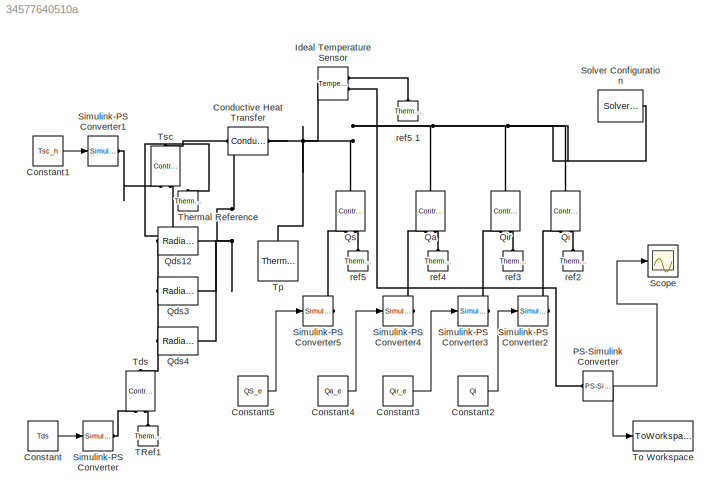
MODEL slx_34577640510a
KIND model
CONFIG AbsTol = auto
CONFIG EnableMultiTasking = on
CONFIG FixedStep = auto
CONFIG MaxStep = auto
CONFIG MinStep = auto
CONFIG RelTol = 1e-3
CONFIG SampleTimeConstraint = Unconstrained
CONFIG Solver = VariableStepAuto
CONFIG SolverName = VariableStepAuto
CONFIG StartTime = 0.0
CONFIG StopTime = time
BLOCK [Reference] Conductive Heat Transfer  REF=fl_lib/Thermal/Thermal Elements/Conductive Heat
Transfer
  Ports = [0, 0, 0, 0, 0, 1, 1]
  SourceBlock = fl_lib/Thermal/Thermal Elements/Conductive Heat\nTransfer
  SourceProductBaseCode = SS
  SourceProductName = Simscape
  SourceType = Conductive Heat\nTransfer
BLOCK [Constant] Constant
  Value = Tds
BLOCK [Constant] Constant1
  Value = Tsc_h
BLOCK [Constant] Constant2
  Value = Qi
BLOCK [Constant] Constant3
  Value = Qir_e
BLOCK [Constant] Constant4
  Value = Qa_e
BLOCK [Constant] Constant5
  Value = QS_e
BLOCK [Reference] Ideal Temperature Sensor  REF=fl_lib/Thermal/Thermal Sensors/Temperature Sensor
  Ports = [0, 0, 0, 0, 0, 1, 2]
  SourceBlock = fl_lib/Thermal/Thermal Sensors/Temperature Sensor
  SourceProductBaseCode = SS
  SourceProductName = Simscape
  SourceType = Temperature Sensor
BLOCK [Reference] PS-Simulink Converter  REF=nesl_utility/PS-Simulink
Converter
  Ports = [0, 1, 0, 0, 0, 1]
  SourceBlock = nesl_utility/PS-Simulink\nConverter
  SourceProductBaseCode = SS
  SourceProductName = Simscape
  SourceType = PS-Simulink\nConverter
BLOCK [Reference] Qa  REF=fl_lib/Thermal/Thermal Sources/Controlled Heat Flow
Rate Source
  Ports = [0, 0, 0, 0, 0, 1, 2]
  SourceBlock = fl_lib/Thermal/Thermal Sources/Controlled Heat Flow\nRate Source
  SourceProductBaseCode = SS
  SourceProductName = Simscape
  SourceType = Controlled Heat Flow\nRate Source
BLOCK [Reference] Qds12  REF=fl_lib/Thermal/Thermal Elements/Radiative Heat
Transfer
  Ports = [0, 0, 0, 0, 0, 1, 1]
  SourceBlock = fl_lib/Thermal/Thermal Elements/Radiative Heat\nTransfer
  SourceProductBaseCode = SS
  SourceProductName = Simscape
  SourceType = Radiative Heat\nTransfer
BLOCK [Reference] Qds3  REF=fl_lib/Thermal/Thermal Elements/Radiative Heat
Transfer
  Ports = [0, 0, 0, 0, 0, 1, 1]
  SourceBlock = fl_lib/Thermal/Thermal Elements/Radiative Heat\nTransfer
  SourceProductBaseCode = SS
  SourceProductName = Simscape
  SourceType = Radiative Heat\nTransfer
BLOCK [Reference] Qds4  REF=fl_lib/Thermal/Thermal Elements/Radiative Heat
Transfer
  Ports = [0, 0, 0, 0, 0, 1, 1]
  SourceBlock = fl_lib/Thermal/Thermal Elements/Radiative Heat\nTransfer
  SourceProductBaseCode = SS
  SourceProductName = Simscape
  SourceType = Radiative Heat\nTransfer
BLOCK [Reference] Qi  REF=fl_lib/Thermal/Thermal Sources/Controlled Heat Flow
Rate Source
  Ports = [0, 0, 0, 0, 0, 1, 2]
  SourceBlock = fl_lib/Thermal/Thermal Sources/Controlled Heat Flow\nRate Source
  SourceProductBaseCode = SS
  SourceProductName = Simscape
  SourceType = Controlled Heat Flow\nRate Source
BLOCK [Reference] Qir  REF=fl_lib/Thermal/Thermal Sources/Controlled Heat Flow
Rate Source
  Ports = [0, 0, 0, 0, 0, 1, 2]
  SourceBlock = fl_lib/Thermal/Thermal Sources/Controlled Heat Flow\nRate Source
  SourceProductBaseCode = SS
  SourceProductName = Simscape
  SourceType = Controlled Heat Flow\nRate Source
BLOCK [Reference] Qs  REF=fl_lib/Thermal/Thermal Sources/Controlled Heat Flow
Rate Source
  Ports = [0, 0, 0, 0, 0, 1, 2]
  SourceBlock = fl_lib/Thermal/Thermal Sources/Controlled Heat Flow\nRate Source
  SourceProductBaseCode = SS
  SourceProductName = Simscape
  SourceType = Controlled Heat Flow\nRate Source
BLOCK [Scope] Scope
  Floating = off
  NumInputPorts = 1
  Ports = [1]
  ScopeSpecificationString = Simulink.scopes.TimeScopeBlockCfg('CurrentConfiguration', extmgr.ConfigurationSet(extmgr.Configuration('Core','General UI',true),extmgr.Configuration('Core','Source UI',true),extmgr.Configuration('Sources','WiredSimulink',true),extmgr.Configuration('Visuals','Time Domain',true,'SerializedDisplays',{struct('MinYLimReal','259.68347','MaxYLimReal','392.84879','YLabelReal','','MinYLimMag','259.68347',...<+1425ch>
BLOCK [Reference] Simulink-PS Converter  REF=nesl_utility/Simulink-PS
Converter
  Ports = [1, 0, 0, 0, 0, 0, 1]
  SourceBlock = nesl_utility/Simulink-PS\nConverter
  SourceProductBaseCode = SS
  SourceProductName = Simscape
  SourceType = Simulink-PS\nConverter
BLOCK [Reference] Simulink-PS Converter1  REF=nesl_utility/Simulink-PS
Converter
  Ports = [1, 0, 0, 0, 0, 0, 1]
  SourceBlock = nesl_utility/Simulink-PS\nConverter
  SourceProductBaseCode = SS
  SourceProductName = Simscape
  SourceType = Simulink-PS\nConverter
BLOCK [Reference] Simulink-PS Converter2  REF=nesl_utility/Simulink-PS
Converter
  Ports = [1, 0, 0, 0, 0, 0, 1]
  SourceBlock = nesl_utility/Simulink-PS\nConverter
  SourceProductBaseCode = SS
  SourceProductName = Simscape
  SourceType = Simulink-PS\nConverter
BLOCK [Reference] Simulink-PS Converter3  REF=nesl_utility/Simulink-PS
Converter
  Ports = [1, 0, 0, 0, 0, 0, 1]
  SourceBlock = nesl_utility/Simulink-PS\nConverter
  SourceProductBaseCode = SS
  SourceProductName = Simscape
  SourceType = Simulink-PS\nConverter
BLOCK [Reference] Simulink-PS Converter4  REF=nesl_utility/Simulink-PS
Converter
  Ports = [1, 0, 0, 0, 0, 0, 1]
  SourceBlock = nesl_utility/Simulink-PS\nConverter
  SourceProductBaseCode = SS
  SourceProductName = Simscape
  SourceType = Simulink-PS\nConverter
BLOCK [Reference] Simulink-PS Converter5  REF=nesl_utility/Simulink-PS
Converter
  Ports = [1, 0, 0, 0, 0, 0, 1]
  SourceBlock = nesl_utility/Simulink-PS\nConverter
  SourceProductBaseCode = SS
  SourceProductName = Simscape
  SourceType = Simulink-PS\nConverter
BLOCK [Reference] Solver Configuration  REF=nesl_utility/Solver
Configuration
  Ports = [0, 0, 0, 0, 0, 0, 1]
  SourceBlock = nesl_utility/Solver\nConfiguration
  SourceProductBaseCode = SS
  SourceProductName = Simscape
  SourceType = Solver\nConfiguration
BLOCK [Reference] TRef1  REF=fl_lib/Thermal/Thermal Elements/Thermal Reference
  Ports = [0, 0, 0, 0, 0, 1]
  SourceBlock = fl_lib/Thermal/Thermal Elements/Thermal Reference
  SourceProductBaseCode = SS
  SourceProductName = Simscape
  SourceType = Thermal Reference
BLOCK [Reference] Tds  REF=fl_lib/Thermal/Thermal Sources/Controlled
Temperature Source
  Ports = [0, 0, 0, 0, 0, 1, 2]
  SourceBlock = fl_lib/Thermal/Thermal Sources/Controlled\nTemperature Source
  SourceProductBaseCode = SS
  SourceProductName = Simscape
  SourceType = Controlled\nTemperature Source
BLOCK [Reference] Thermal Reference  REF=fl_lib/Thermal/Thermal Elements/Thermal Reference
  Ports = [0, 0, 0, 0, 0, 1]
  SourceBlock = fl_lib/Thermal/Thermal Elements/Thermal Reference
  SourceProductBaseCode = SS
  SourceProductName = Simscape
  SourceType = Thermal Reference
BLOCK [ToWorkspace] To Workspace
  FixptAsFi = on
  MaxDataPoints = inf
  Ports = [1]
  SampleTime = -1
  Save2DSignal = 3-D array (concatenate along third dimension)
  SaveFormat = Timeseries
  VariableName = Thot_earth
BLOCK [Reference] Tp  REF=fl_lib/Thermal/Thermal Elements/Thermal Mass
  Ports = [0, 0, 0, 0, 0, 1]
  SourceBlock = fl_lib/Thermal/Thermal Elements/Thermal Mass
  SourceProductBaseCode = SS
  SourceProductName = Simscape
  SourceType = Thermal Mass
BLOCK [Reference] Tsc  REF=fl_lib/Thermal/Thermal Sources/Controlled
Temperature Source
  Ports = [0, 0, 0, 0, 0, 1, 2]
  SourceBlock = fl_lib/Thermal/Thermal Sources/Controlled\nTemperature Source
  SourceProductBaseCode = SS
  SourceProductName = Simscape
  SourceType = Controlled\nTemperature Source
BLOCK [Reference] ref2  REF=fl_lib/Thermal/Thermal Elements/Thermal Reference
  Ports = [0, 0, 0, 0, 0, 1]
  SourceBlock = fl_lib/Thermal/Thermal Elements/Thermal Reference
  SourceProductBaseCode = SS
  SourceProductName = Simscape
  SourceType = Thermal Reference
BLOCK [Reference] ref3   REF=fl_lib/Thermal/Thermal Elements/Thermal Reference
  Ports = [0, 0, 0, 0, 0, 1]
  SourceBlock = fl_lib/Thermal/Thermal Elements/Thermal Reference
  SourceProductBaseCode = SS
  SourceProductName = Simscape
  SourceType = Thermal Reference
BLOCK [Reference] ref4  REF=fl_lib/Thermal/Thermal Elements/Thermal Reference
  Ports = [0, 0, 0, 0, 0, 1]
  SourceBlock = fl_lib/Thermal/Thermal Elements/Thermal Reference
  SourceProductBaseCode = SS
  SourceProductName = Simscape
  SourceType = Thermal Reference
BLOCK [Reference] ref5   REF=fl_lib/Thermal/Thermal Elements/Thermal Reference
  Ports = [0, 0, 0, 0, 0, 1]
  SourceBlock = fl_lib/Thermal/Thermal Elements/Thermal Reference
  SourceProductBaseCode = SS
  SourceProductName = Simscape
  SourceType = Thermal Reference
BLOCK [Reference] ref5 1  REF=fl_lib/Thermal/Thermal Elements/Thermal Reference
  Ports = [0, 0, 0, 0, 0, 1]
  SourceBlock = fl_lib/Thermal/Thermal Elements/Thermal Reference
  SourceProductBaseCode = SS
  SourceProductName = Simscape
  SourceType = Thermal Reference
LINE Constant1:1 -> Simulink-PS Converter1:1
LINE Constant2:1 -> Simulink-PS Converter2:1
LINE Constant3:1 -> Simulink-PS Converter3:1
LINE Constant4:1 -> Simulink-PS Converter4:1
LINE Constant5:1 -> Simulink-PS Converter5:1
LINE Constant:1 -> Simulink-PS Converter:1
NET PS-Simulink Converter:1 -> Scope:1, To Workspace:1
PLINE Conductive Heat Transfer:LConn1 -- Tsc:LConn1
PNET net1: Conductive Heat Transfer:RConn1 -- Ideal Temperature Sensor:LConn1 -- Qa:LConn1 -- Qds12:RConn1 -- Qds3:RConn1 -- Qds4:RConn1 -- Qi:LConn1 -- Qir:LConn1 -- Qs:LConn1 -- Solver Configuration:RConn1 -- Tp:LConn1
PLINE Ideal Temperature Sensor:RConn1 -- ref5 1:LConn1
PLINE Ideal Temperature Sensor:RConn2 -- PS-Simulink Converter:LConn1
PLINE Qa:RConn1 -- Simulink-PS Converter4:RConn1
PLINE Qa:RConn2 -- ref4:LConn1
PNET net2: Qds12:LConn1 -- Qds3:LConn1 -- Qds4:LConn1 -- Tds:LConn1
PLINE Qi:RConn1 -- Simulink-PS Converter2:RConn1
PLINE Qi:RConn2 -- ref2:LConn1
PLINE Qir:RConn1 -- Simulink-PS Converter3:RConn1
PLINE Qir:RConn2 -- ref3 :LConn1
PLINE Qs:RConn1 -- Simulink-PS Converter5:RConn1
PLINE Qs:RConn2 -- ref5 :LConn1
PLINE Simulink-PS Converter1:RConn1 -- Tsc:RConn1
PLINE Simulink-PS Converter:RConn1 -- Tds:RConn1
PLINE TRef1:LConn1 -- Tds:RConn2
PLINE Thermal Reference:LConn1 -- Tsc:RConn2
note: NET lines group one-source signal fan-out (src -> all destinations, sorted); 1:1 wires keep LINE; PNET lines group multi-terminal physical nets as a canonical sorted terminal list (undirected conserving connections); 2-terminal nets keep the pairwise PLINE form
